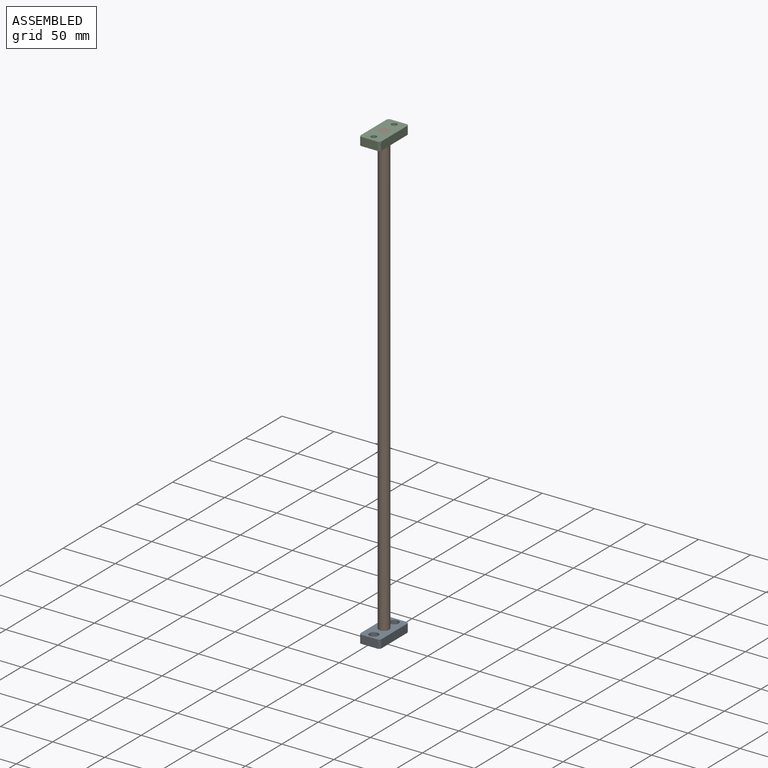
[diagram: assembled view]
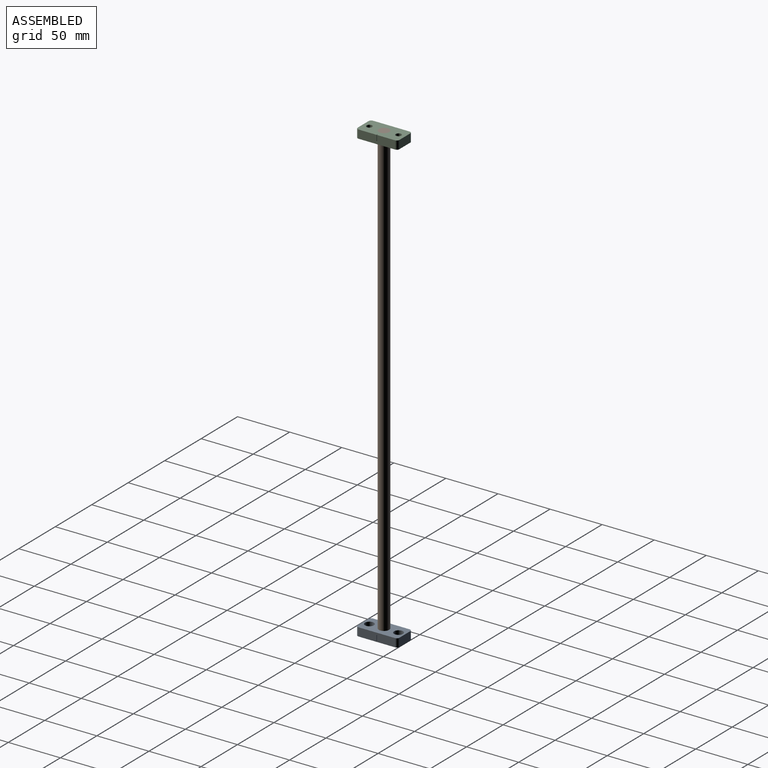
[diagram: assembled view, second angle]
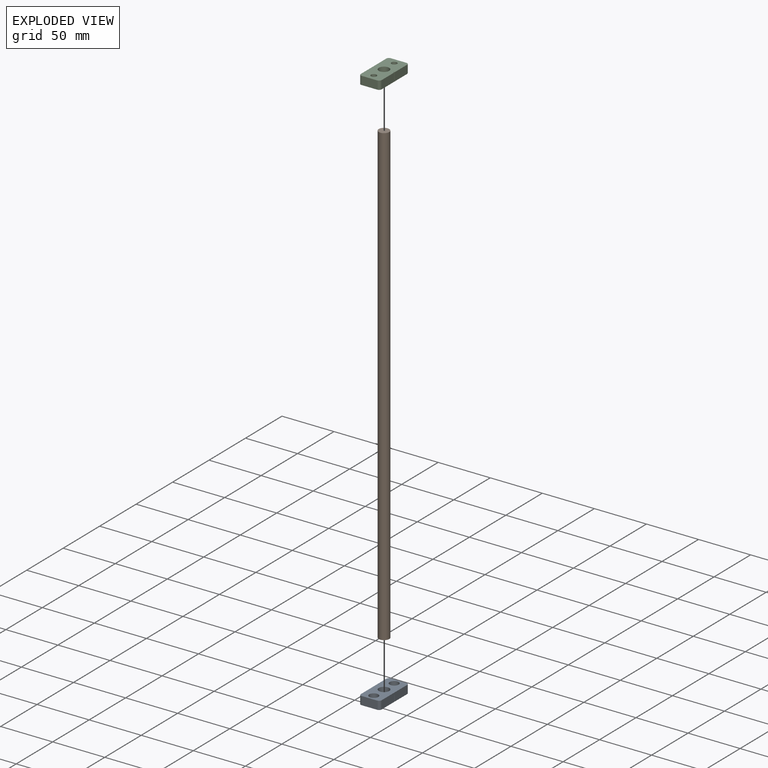
[diagram: exploded view]
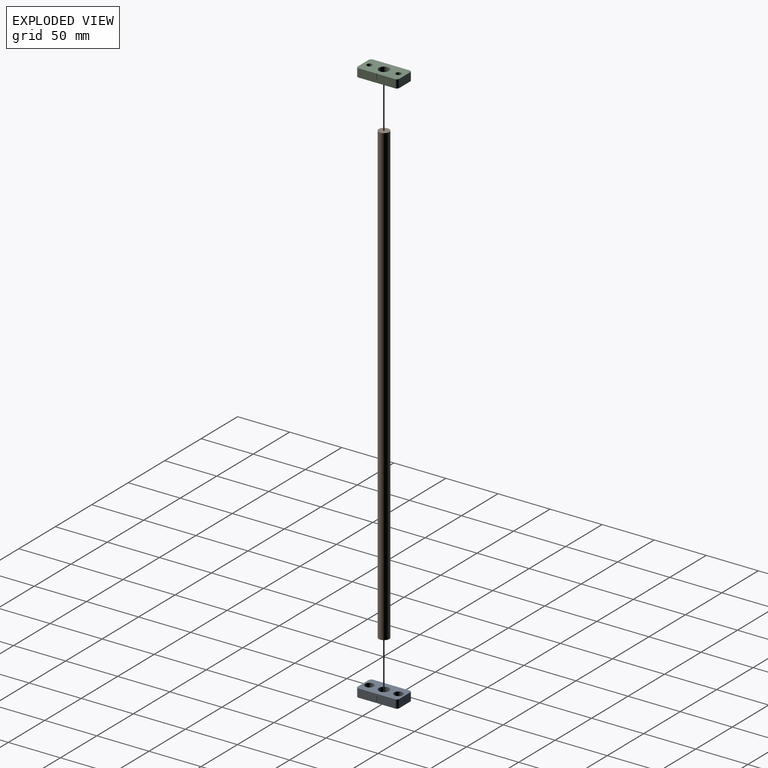
[diagram: exploded view, second angle]
ASSEMBLY  parts=3 mates=2
PART A: 21 faces, bbox 20x40x8 mm
  f0: plane 35x8mm, normal (1,0,0), area 277mm2, adj f7,f8,f15,f16,f17,f18,f19
  f1: cylinder r=2.65mm len=5.3mm, axis (0,0,-1), area 66.6mm2, adj f8,f12
  f2: cylinder r=2.65mm len=5.3mm, axis (0,0,-1), area 66.6mm2, adj f8,f10
  f3: plane 15x8mm, normal (0,1,0), area 120mm2, adj f7,f8,f13,f16
  f4: plane 35x8mm, normal (-1,0,0), area 280mm2, adj f7,f8,f13,f14
  f5: plane 15x8mm, normal (0,-1,0), area 120mm2, adj f7,f8,f14,f15
  f6: cylinder r=5mm len=10mm, axis (0,0,-1), area 251.3mm2, adj f7,f8
  f7: plane 40x20mm, normal (0,0,1), area 599.9mm2, adj f0,f3,f4,f5,f6,f9,f11,f13
  f8: plane 40x20mm, normal (0,0,-1), area 671.5mm2, adj f0,f1,f2,f3,f4,f5,f6,f13
  f9: cylinder r=4.3mm len=8.6mm, axis (0,0,1), area 108.1mm2, adj f7,f10
  f10: plane 8.6x8.6mm, normal (0,0,1), area 36mm2, adj f2,f9
  f11: cylinder r=4.3mm len=8.6mm, axis (0,0,1), area 108.1mm2, adj f7,f12
  f12: plane 8.6x8.6mm, normal (0,0,1), area 36mm2, adj f1,f11
  f13: cylinder r=2.5mm len=8mm, axis (0,0,-1), area 31.4mm2, adj f3,f4,f7,f8
  f14: cylinder r=2.5mm len=8mm, axis (0,0,1), area 31.4mm2, adj f4,f5,f7,f8
  f15: cylinder r=2.5mm len=8mm, axis (0,0,-1), area 31.4mm2, adj f0,f5,f7,f8
  f16: cylinder r=2.5mm len=8mm, axis (0,0,1), area 31.4mm2, adj f0,f3,f7,f8
  f17: plane 6x1mm, normal (0,-1,0), area 6mm2, adj f0,f8,f18,f20
  f18: plane 1x0.5mm, normal (0,0,-1), area 0.5mm2, adj f0,f17,f19,f20
  f19: plane 6x1mm, normal (0,1,0), area 6mm2, adj f0,f8,f18,f20
  f20: plane 6x0.5mm, normal (1,0,0), area 3mm2, adj f8,f17,f18,f19
PART B: 3 faces, bbox 10x10x440 mm
  f0: cylinder r=5mm len=440mm, axis (0,0,-1), area 13823mm2, adj f1,f2
  f1: plane 10x10mm, normal (0,0,1), area 78.5mm2, adj f0
  f2: plane 10x10mm, normal (0,0,-1), area 78.5mm2, adj f0
PART C: same geometry as A
PLACE A t=(325.58,253.62,-344.23)mm
PLACE B t=(325.58,253.62,-344.23)mm
PLACE C rot(axis=(-1,0,0),180deg) t=(325.58,253.62,95.77)mm
MATE fastened B.f0 <-> A.f6  axis (0,0,-1) through (325.58,253.62,-344.23)mm
MATE fastened B.f0 <-> C.f6  axis (0,0,1) through (325.58,253.62,95.77)mm
